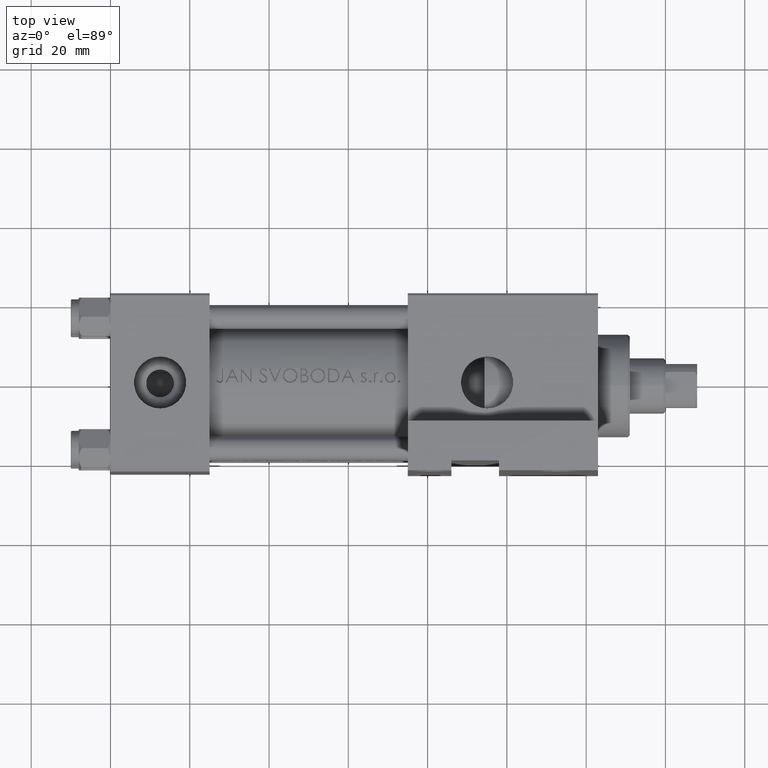
[diagram: clean part render]
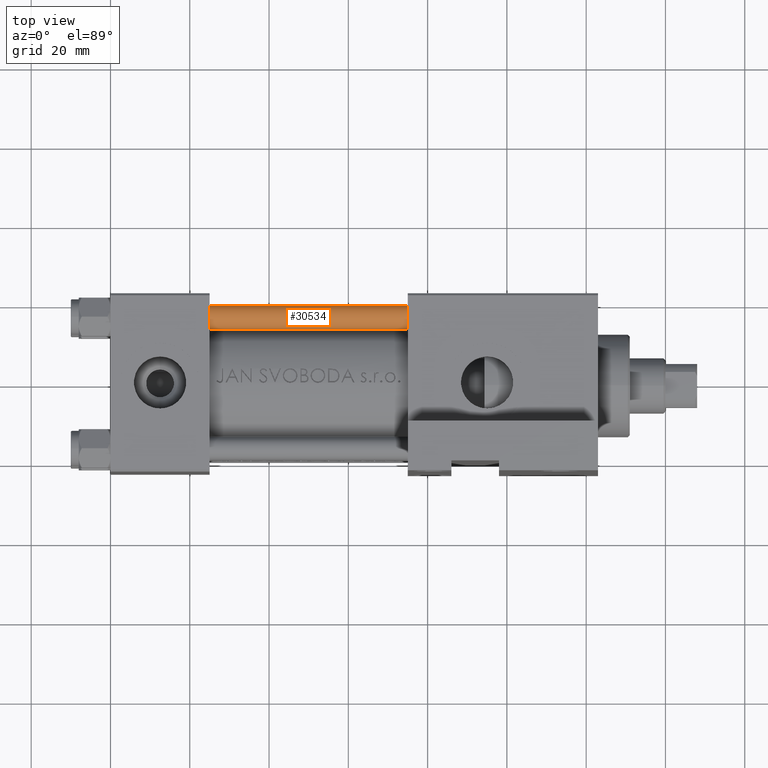
[diagram: same view with one face highlighted and labeled with its STEP entity id]
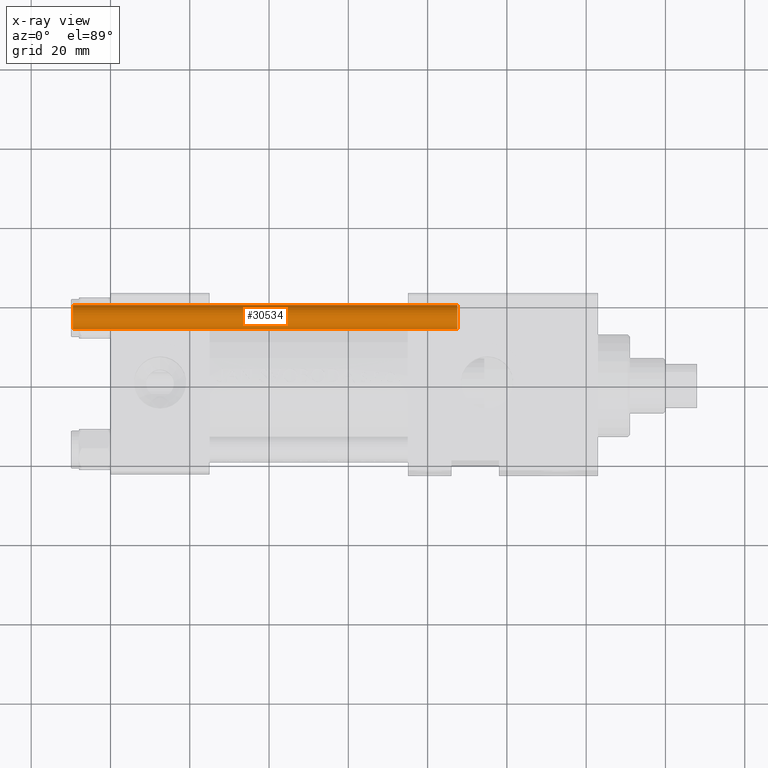
[diagram: x-ray of the same camera — body ghosted, the highlighted face saturated]
A machine part, top view. The second image highlights one B-rep face of the part: STEP entity #30534.
The next image is the same camera in x-ray: the body ghosted, the highlighted face saturated — about 0% of this face is hidden behind the body in this view.
In plain terms, the highlighted cylindrical surface (edge-blend (fillet) strip) has radius 3 mm, axis along (1, -0, 0).
Its self-contained STEP definition (entity closure, byte-faithful):
#365 = VERTEX_POINT ( 'NONE', #45875 ) ;
#1061 = LINE ( 'NONE', #38213, #12818 ) ;
#1791 = EDGE_CURVE ( 'NONE', #9709, #365, #16049, .T. ) ;
#3001 = CIRCLE ( 'NONE', #5349, 3.000000000000000444 ) ;
#3372 = VERTEX_POINT ( 'NONE', #23067 ) ;
#3384 = CARTESIAN_POINT ( 'NONE',  ( 3.000000000000000444, 3.673940397442060361E-16, 98.00000000000000000 ) ) ;
#5349 = AXIS2_PLACEMENT_3D ( 'NONE', #13788, #18122, #10887 ) ;
#7688 = EDGE_LOOP ( 'NONE', ( #22106, #36361, #37139, #12089 ) ) ;
#7711 = DIRECTION ( 'NONE',  ( -0.000000000000000000, -0.000000000000000000, -1.000000000000000000 ) ) ;
#8176 = DIRECTION ( 'NONE',  ( -1.000000000000000000, 0.000000000000000000, 0.000000000000000000 ) ) ;
#8416 = CYLINDRICAL_SURFACE ( 'NONE', #35685, 3.000000000000000444 ) ;
#9096 = AXIS2_PLACEMENT_3D ( 'NONE', #9799, #36086, #46955 ) ;
#9709 = VERTEX_POINT ( 'NONE', #46388 ) ;
#9799 = CARTESIAN_POINT ( 'NONE',  ( 0.000000000000000000, 0.000000000000000000, 97.50000000000001421 ) ) ;
#10887 = DIRECTION ( 'NONE',  ( 1.000000000000000000, 0.000000000000000000, 0.000000000000000000 ) ) ;
#12089 = ORIENTED_EDGE ( 'NONE', *, *, #20474, .T. ) ;
#12818 = VECTOR ( 'NONE', #15776, 1000.000000000000000 ) ;
#13788 = CARTESIAN_POINT ( 'NONE',  ( 0.000000000000000000, 0.000000000000000000, 0.5000000000000281997 ) ) ;
#15776 = DIRECTION ( 'NONE',  ( -0.000000000000000000, -0.000000000000000000, -1.000000000000000000 ) ) ;
#16049 = CIRCLE ( 'NONE', #9096, 3.000000000000000444 ) ;
#18122 = DIRECTION ( 'NONE',  ( -0.000000000000000000, -0.000000000000000000, 1.000000000000000000 ) ) ;
#20474 = EDGE_CURVE ( 'NONE', #3372, #41936, #3001, .T. ) ;
#22106 = ORIENTED_EDGE ( 'NONE', *, *, #32683, .F. ) ;
#23067 = CARTESIAN_POINT ( 'NONE',  ( -3.000000000000000444, 0.000000000000000000, 0.5000000000000281997 ) ) ;
#26272 = CARTESIAN_POINT ( 'NONE',  ( 0.000000000000000000, 0.000000000000000000, 98.00000000000000000 ) ) ;
#29231 = CARTESIAN_POINT ( 'NONE',  ( 3.000000000000000444, 3.673940397442060361E-16, 0.5000000000000281997 ) ) ;
#30534 = ADVANCED_FACE ( 'NONE', ( #33745 ), #8416, .T. ) ;
#32683 = EDGE_CURVE ( 'NONE', #9709, #41936, #37373, .T. ) ;
#33745 = FACE_OUTER_BOUND ( 'NONE', #7688, .T. ) ;
#35685 = AXIS2_PLACEMENT_3D ( 'NONE', #26272, #7711, #8176 ) ;
#36086 = DIRECTION ( 'NONE',  ( 0.000000000000000000, 0.000000000000000000, -1.000000000000000000 ) ) ;
#36361 = ORIENTED_EDGE ( 'NONE', *, *, #1791, .T. ) ;
#37139 = ORIENTED_EDGE ( 'NONE', *, *, #39284, .T. ) ;
#37373 = LINE ( 'NONE', #3384, #41015 ) ;
#38213 = CARTESIAN_POINT ( 'NONE',  ( -3.000000000000000444, 0.000000000000000000, 98.00000000000000000 ) ) ;
#39284 = EDGE_CURVE ( 'NONE', #365, #3372, #1061, .T. ) ;
#41015 = VECTOR ( 'NONE', #44384, 1000.000000000000000 ) ;
#41936 = VERTEX_POINT ( 'NONE', #29231 ) ;
#44384 = DIRECTION ( 'NONE',  ( -0.000000000000000000, -0.000000000000000000, -1.000000000000000000 ) ) ;
#45875 = CARTESIAN_POINT ( 'NONE',  ( -3.000000000000000444, 0.000000000000000000, 97.50000000000001421 ) ) ;
#46388 = CARTESIAN_POINT ( 'NONE',  ( 3.000000000000000444, 3.673940397442060361E-16, 97.50000000000001421 ) ) ;
#46955 = DIRECTION ( 'NONE',  ( 1.000000000000000000, 0.000000000000000000, 0.000000000000000000 ) ) ;